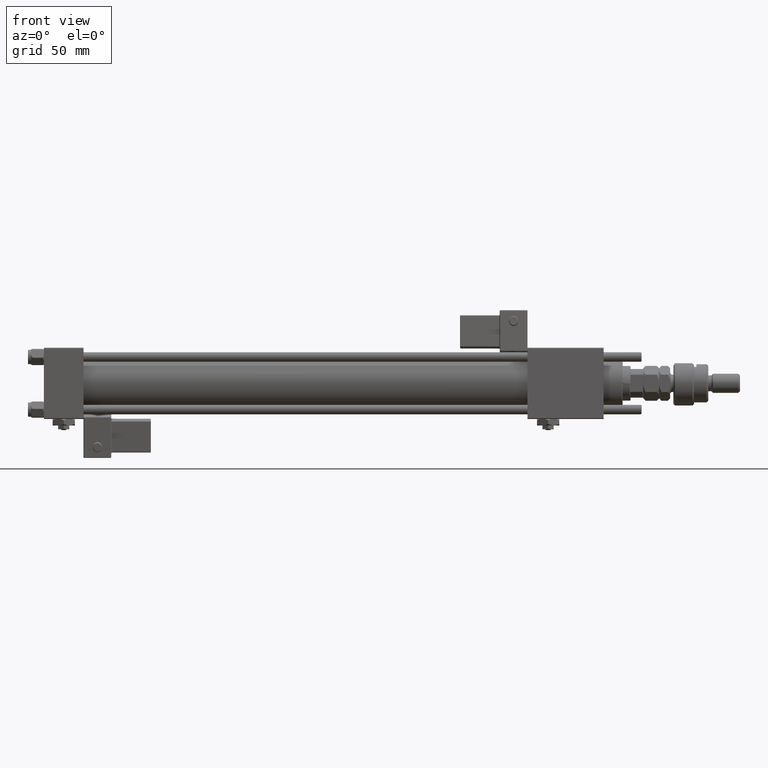
[diagram: clean part render]
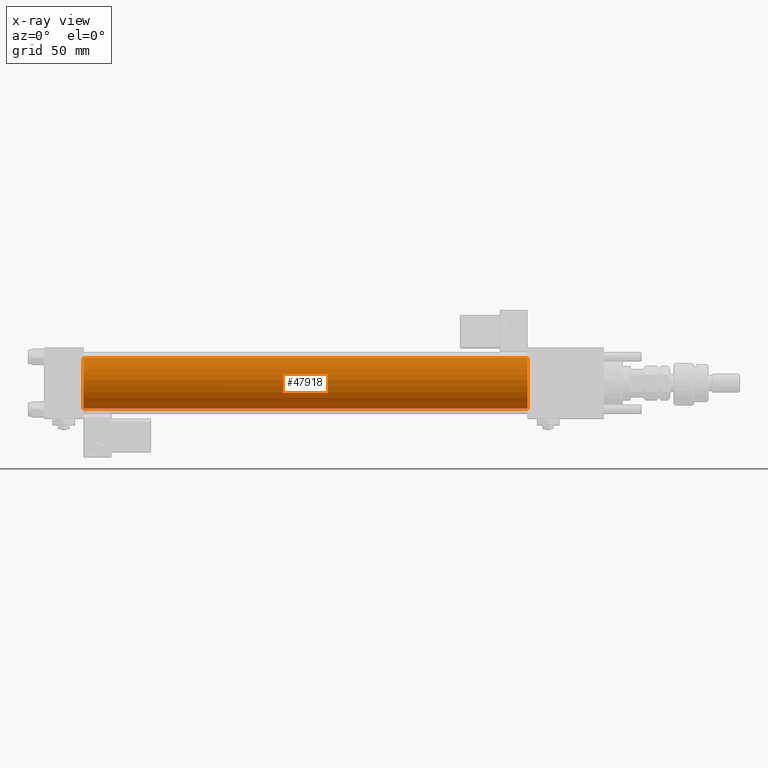
[diagram: x-ray — body ghosted, one internal face saturated and labeled with its STEP entity id]
A machine part, front view, then the same camera in x-ray: the body is ghosted and one INTERNAL B-rep face — a face not visible from any outside direction — is saturated and labeled: STEP entity #47918.
In plain terms, the highlighted cylindrical surface (edge-blend (fillet) strip) has radius 16 mm, axis along (-1, -0, -0).
Its self-contained STEP definition (entity closure, byte-faithful):
#1549 = VECTOR ( 'NONE', #51522, 1000.000000000000000 ) ;
#3518 = DIRECTION ( 'NONE',  ( -1.000000000000000000, -0.000000000000000000, -0.000000000000000000 ) ) ;
#3726 = VERTEX_POINT ( 'NONE', #22795 ) ;
#4272 = EDGE_CURVE ( 'NONE', #44979, #55204, #56504, .T. ) ;
#5048 = ORIENTED_EDGE ( 'NONE', *, *, #4272, .F. ) ;
#7730 = CYLINDRICAL_SURFACE ( 'NONE', #31603, 16.00000000000000000 ) ;
#8697 = FACE_OUTER_BOUND ( 'NONE', #37197, .T. ) ;
#10921 = DIRECTION ( 'NONE',  ( 0.000000000000000000, 0.000000000000000000, -1.000000000000000000 ) ) ;
#12083 = LINE ( 'NONE', #31837, #1549 ) ;
#16995 = EDGE_CURVE ( 'NONE', #55204, #60155, #22221, .T. ) ;
#20520 = EDGE_CURVE ( 'NONE', #3726, #60155, #12083, .T. ) ;
#21316 = DIRECTION ( 'NONE',  ( 1.000000000000000000, 0.000000000000000000, 0.000000000000000000 ) ) ;
#21513 = AXIS2_PLACEMENT_3D ( 'NONE', #40362, #49722, #10921 ) ;
#22221 = CIRCLE ( 'NONE', #33593, 16.00000000000000000 ) ;
#22795 = CARTESIAN_POINT ( 'NONE',  ( 305.0000000000000568, -6.426503353294456087E-16, -16.00000000000000000 ) ) ;
#27106 = DIRECTION ( 'NONE',  ( -1.000000000000000000, -0.000000000000000000, -0.000000000000000000 ) ) ;
#30978 = CARTESIAN_POINT ( 'NONE',  ( 25.00000000000000000, -6.426503353294456087E-16, -16.00000000000000000 ) ) ;
#31603 = AXIS2_PLACEMENT_3D ( 'NONE', #62339, #3518, #33287 ) ;
#31837 = CARTESIAN_POINT ( 'NONE',  ( 305.0000000000000568, -6.426503353294456087E-16, -16.00000000000000000 ) ) ;
#33287 = DIRECTION ( 'NONE',  ( 0.000000000000000000, 0.000000000000000000, 1.000000000000000000 ) ) ;
#33593 = AXIS2_PLACEMENT_3D ( 'NONE', #55886, #21316, #41034 ) ;
#33856 = CIRCLE ( 'NONE', #21513, 16.00000000000000000 ) ;
#34507 = ORIENTED_EDGE ( 'NONE', *, *, #53731, .T. ) ;
#36756 = CARTESIAN_POINT ( 'NONE',  ( 305.0000000000000568, -2.602085213965210642E-15, 16.00000000000000000 ) ) ;
#37197 = EDGE_LOOP ( 'NONE', ( #34507, #54655, #58670, #5048 ) ) ;
#40362 = CARTESIAN_POINT ( 'NONE',  ( 305.0000000000000568, -2.602085213965210642E-15, 0.000000000000000000 ) ) ;
#41034 = DIRECTION ( 'NONE',  ( 0.000000000000000000, 0.000000000000000000, -1.000000000000000000 ) ) ;
#44979 = VERTEX_POINT ( 'NONE', #36756 ) ;
#46179 = CARTESIAN_POINT ( 'NONE',  ( 305.0000000000000568, -2.602085213965210642E-15, 16.00000000000000000 ) ) ;
#47918 = ADVANCED_FACE ( 'NONE', ( #8697 ), #7730, .F. ) ;
#49722 = DIRECTION ( 'NONE',  ( 1.000000000000000000, 0.000000000000000000, 0.000000000000000000 ) ) ;
#51522 = DIRECTION ( 'NONE',  ( -1.000000000000000000, -0.000000000000000000, -0.000000000000000000 ) ) ;
#52625 = VECTOR ( 'NONE', #27106, 1000.000000000000000 ) ;
#53731 = EDGE_CURVE ( 'NONE', #44979, #3726, #33856, .T. ) ;
#54655 = ORIENTED_EDGE ( 'NONE', *, *, #20520, .T. ) ;
#55204 = VERTEX_POINT ( 'NONE', #61895 ) ;
#55886 = CARTESIAN_POINT ( 'NONE',  ( 25.00000000000000000, -2.602085213965210642E-15, 0.000000000000000000 ) ) ;
#56504 = LINE ( 'NONE', #46179, #52625 ) ;
#58670 = ORIENTED_EDGE ( 'NONE', *, *, #16995, .F. ) ;
#60155 = VERTEX_POINT ( 'NONE', #30978 ) ;
#61895 = CARTESIAN_POINT ( 'NONE',  ( 25.00000000000000000, -2.602085213965210642E-15, 16.00000000000000000 ) ) ;
#62339 = CARTESIAN_POINT ( 'NONE',  ( 305.0000000000000568, -2.602085213965210642E-15, 0.000000000000000000 ) ) ;